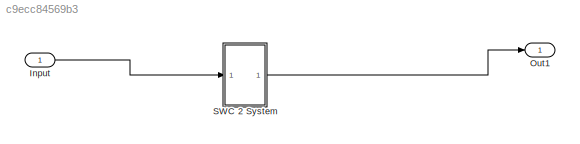
MODEL slx_c9ecc84569b3
KIND model
CONFIG AbsTol = auto
CONFIG EnableMultiTasking = off
CONFIG FixedStep = auto
CONFIG MaxStep = auto
CONFIG MinStep = auto
CONFIG RelTol = 1e-3
CONFIG SampleTimeConstraint = Unconstrained
CONFIG SolverName = VariableStepAuto
CONFIG StartTime = 0.0
CONFIG StopTime = 10.0
BLOCK [Inport] Input
BLOCK [Outport] Out1
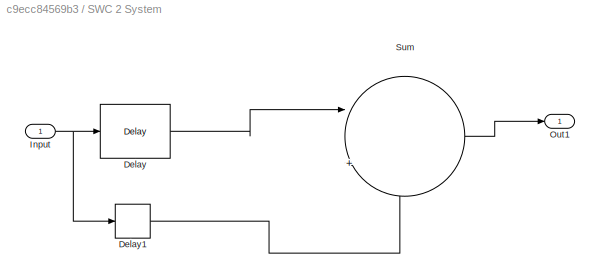
BLOCK [SubSystem] SWC 2 System
BLOCK [Delay] SWC 2 System/Delay
  DelayLength = 1
  InputPortMap = u0
BLOCK [Delay] SWC 2 System/Delay1
  InputPortMap = u0
BLOCK [Inport] SWC 2 System/Input
BLOCK [Outport] SWC 2 System/Out1
BLOCK [Sum] SWC 2 System/Sum
  Inputs = |++
LINE Input:1 -> SWC 2 System:1
LINE SWC 2 System/Delay1:1 -> SWC 2 System/Sum:2
LINE SWC 2 System/Delay:1 -> SWC 2 System/Sum:1
NET SWC 2 System/Input:1 -> SWC 2 System/Delay1:1, SWC 2 System/Delay:1
LINE SWC 2 System/Sum:1 -> SWC 2 System/Out1:1
LINE SWC 2 System:1 -> Out1:1
note: NET lines group one-source signal fan-out (src -> all destinations, sorted); 1:1 wires keep LINE
